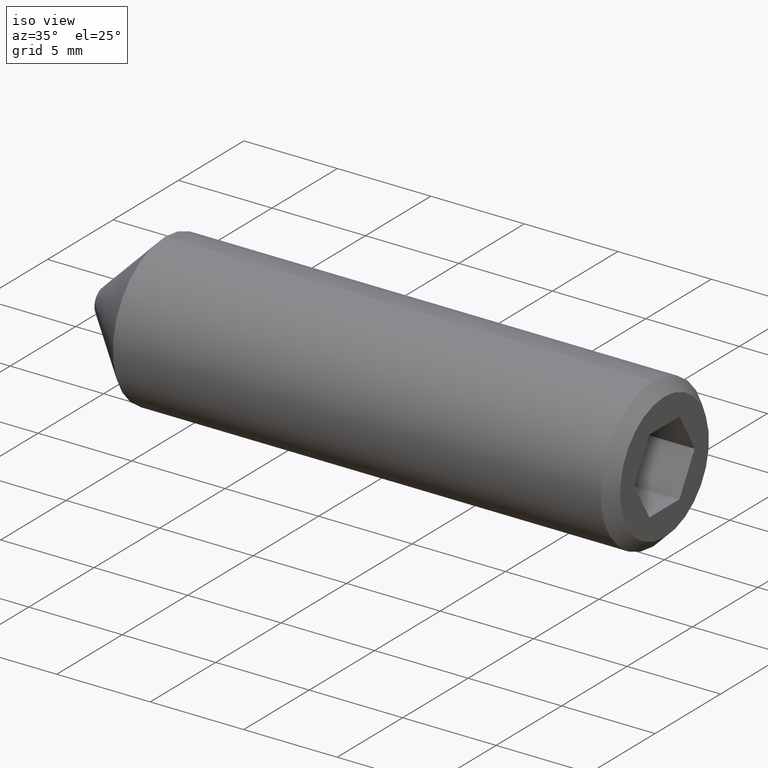
[diagram: clean part render]
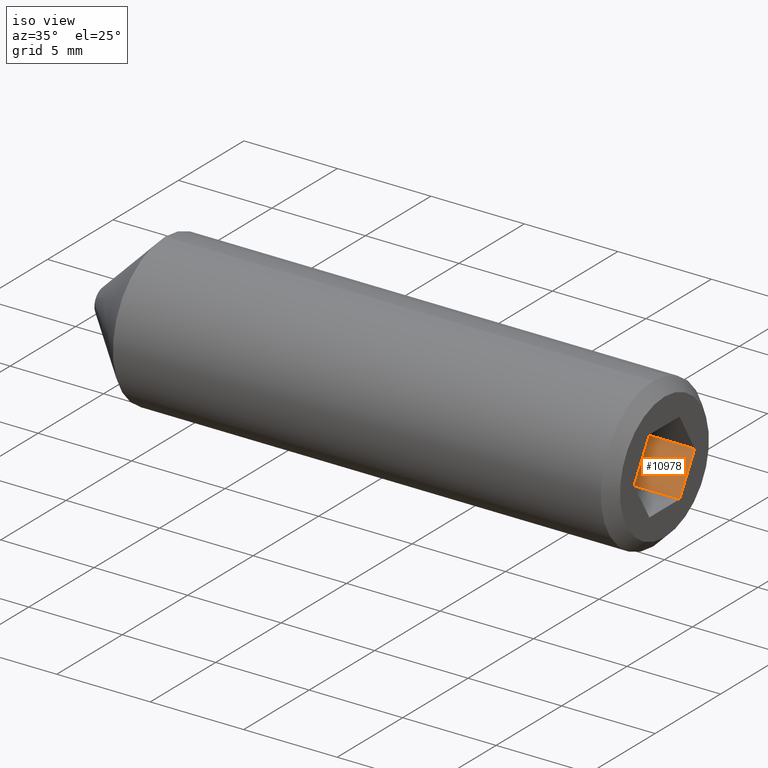
[diagram: same view with one face highlighted and labeled with its STEP entity id]
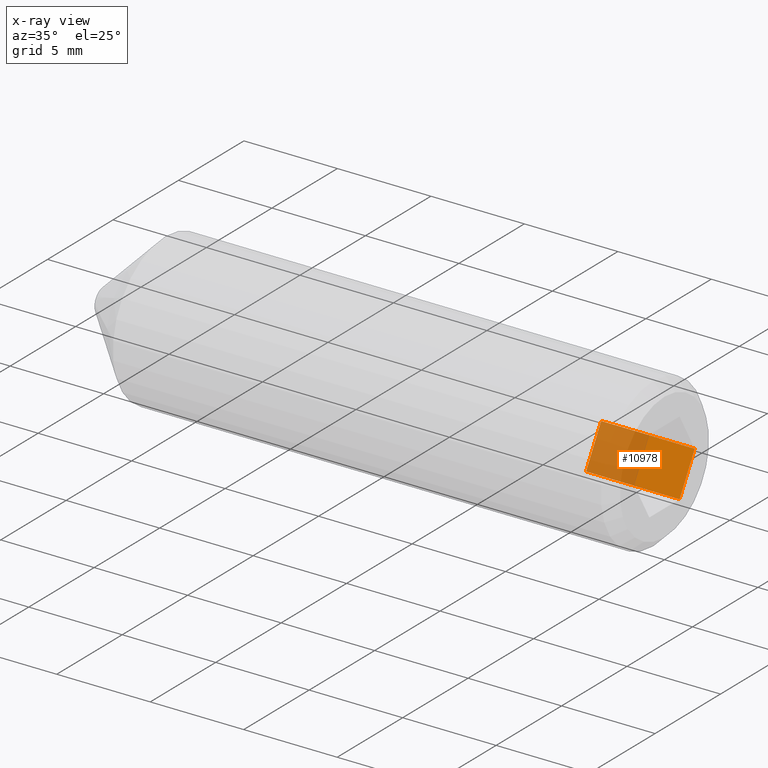
[diagram: x-ray of the same camera — body ghosted, the highlighted face saturated]
A machine part, iso view. The second image highlights one B-rep face of the part: STEP entity #10978.
The next image is the same camera in x-ray: the body ghosted, the highlighted face saturated — about 51% of this face is hidden behind the body in this view.
In plain terms, the highlighted planar face has unit normal (0, 0.866, -0.5).
Its self-contained STEP definition (entity closure, byte-faithful):
#175 = FACE_OUTER_BOUND ( 'NONE', #4255, .T. ) ;
#339 = EDGE_CURVE ( 'NONE', #2768, #12156, #6954, .T. ) ;
#1833 = VERTEX_POINT ( 'NONE', #6808 ) ;
#2319 = CARTESIAN_POINT ( 'NONE',  ( 24.99999999999999600, 1.154700538379252400, -2.000000000000000000 ) ) ;
#2649 = CARTESIAN_POINT ( 'NONE',  ( 24.99999999999999600, 1.154700538379252400, -2.000000000000000000 ) ) ;
#2691 = VECTOR ( 'NONE', #10357, 1000.000000000000100 ) ;
#2768 = VERTEX_POINT ( 'NONE', #2649 ) ;
#2813 = VECTOR ( 'NONE', #4306, 1000.000000000000000 ) ;
#3075 = CARTESIAN_POINT ( 'NONE',  ( 24.99999999999999600, 2.309401076758503400, -1.190619091596349400E-015 ) ) ;
#3314 = DIRECTION ( 'NONE',  ( 0.0000000000000000000, 0.4999999999999999400, 0.8660254037844386000 ) ) ;
#3430 = DIRECTION ( 'NONE',  ( 1.000000000000000000, -0.0000000000000000000, 6.123031769111886300E-017 ) ) ;
#3579 = EDGE_CURVE ( 'NONE', #8704, #1833, #9539, .T. ) ;
#3941 = AXIS2_PLACEMENT_3D ( 'NONE', #6147, #4860, #11737 ) ;
#4123 = EDGE_CURVE ( 'NONE', #2768, #8704, #5846, .T. ) ;
#4255 = EDGE_LOOP ( 'NONE', ( #11590, #7417, #6226, #8147 ) ) ;
#4306 = DIRECTION ( 'NONE',  ( 1.000000000000000000, -0.0000000000000000000, 6.123031769111886300E-017 ) ) ;
#4773 = VECTOR ( 'NONE', #3430, 1000.000000000000000 ) ;
#4860 = DIRECTION ( 'NONE',  ( 3.061515884555943800E-017, 0.8660254037844387100, -0.5000000000000001100 ) ) ;
#5846 = LINE ( 'NONE', #8177, #7832 ) ;
#6147 = CARTESIAN_POINT ( 'NONE',  ( 24.99999999999999600, 1.154700538379252400, -2.000000000000000000 ) ) ;
#6226 = ORIENTED_EDGE ( 'NONE', *, *, #4123, .F. ) ;
#6808 = CARTESIAN_POINT ( 'NONE',  ( 30.00000000000000000, 2.309401076758503400, -8.844675031407550400E-016 ) ) ;
#6954 = LINE ( 'NONE', #2319, #2813 ) ;
#7417 = ORIENTED_EDGE ( 'NONE', *, *, #3579, .F. ) ;
#7832 = VECTOR ( 'NONE', #3314, 1000.000000000000100 ) ;
#8089 = CARTESIAN_POINT ( 'NONE',  ( 24.99999999999999600, 2.309401076758503400, -1.190619091596349400E-015 ) ) ;
#8147 = ORIENTED_EDGE ( 'NONE', *, *, #339, .T. ) ;
#8177 = CARTESIAN_POINT ( 'NONE',  ( 24.99999999999999600, 1.154700538379252400, -2.000000000000000000 ) ) ;
#8389 = EDGE_CURVE ( 'NONE', #12156, #1833, #10820, .T. ) ;
#8704 = VERTEX_POINT ( 'NONE', #8089 ) ;
#9539 = LINE ( 'NONE', #3075, #4773 ) ;
#10357 = DIRECTION ( 'NONE',  ( 0.0000000000000000000, 0.4999999999999999400, 0.8660254037844386000 ) ) ;
#10746 = PLANE ( 'NONE',  #3941 ) ;
#10820 = LINE ( 'NONE', #11467, #2691 ) ;
#10978 = ADVANCED_FACE ( 'NONE', ( #175 ), #10746, .F. ) ;
#11467 = CARTESIAN_POINT ( 'NONE',  ( 30.00000000000000000, 1.154700538379252400, -1.999999999999999600 ) ) ;
#11590 = ORIENTED_EDGE ( 'NONE', *, *, #8389, .T. ) ;
#11737 = DIRECTION ( 'NONE',  ( 0.0000000000000000000, 0.5000000000000000000, 0.8660254037844386000 ) ) ;
#12156 = VERTEX_POINT ( 'NONE', #12158 ) ;
#12158 = CARTESIAN_POINT ( 'NONE',  ( 30.00000000000000000, 1.154700538379252400, -1.999999999999999600 ) ) ;